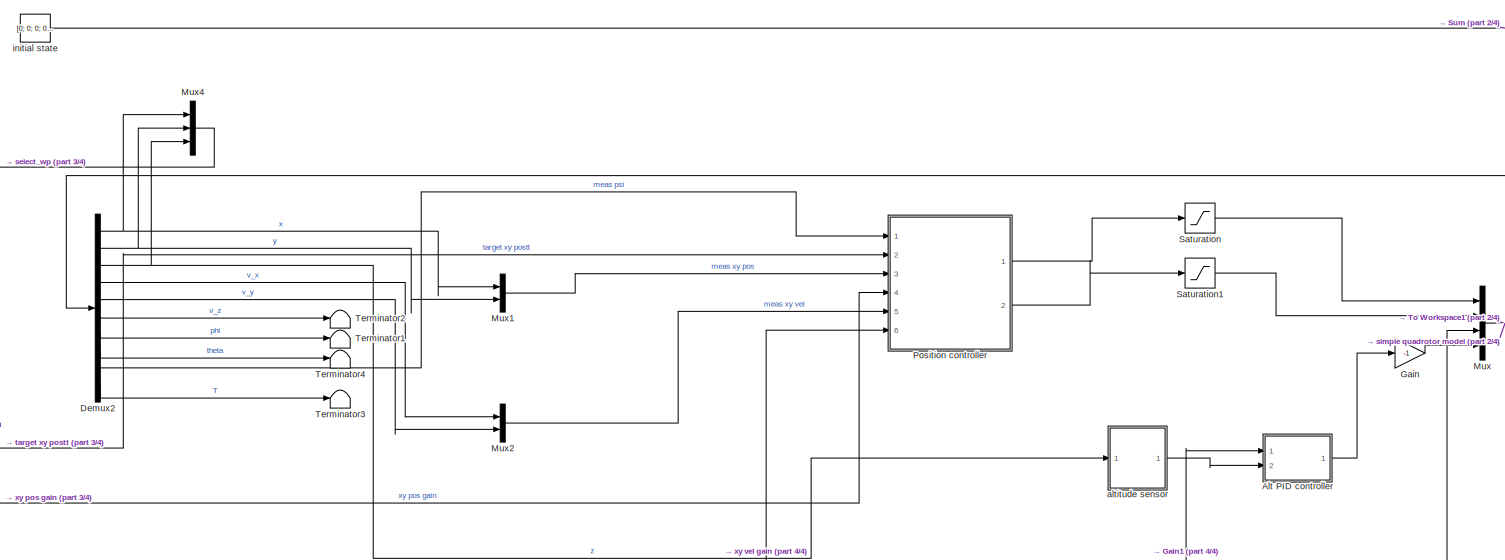
[diagram: root canvas - part 1/4, top center region]
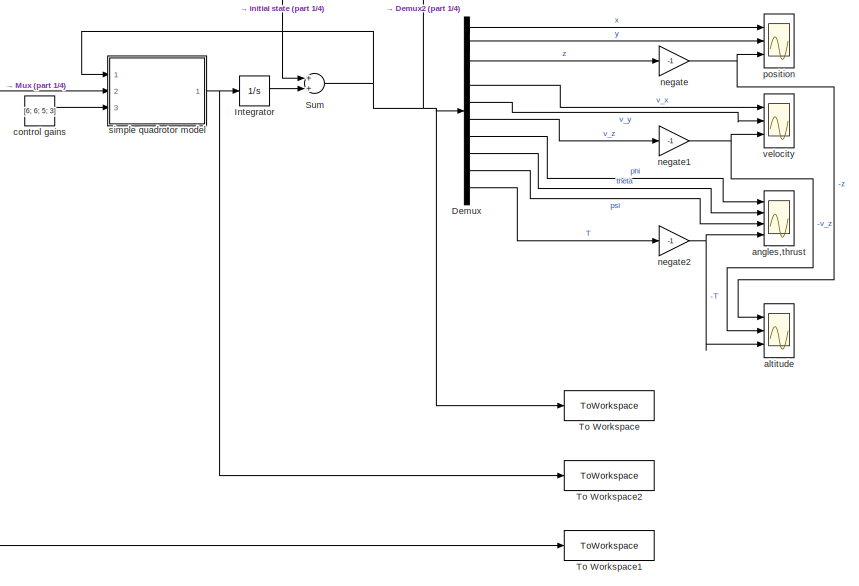
[diagram: root canvas - part 2/4, middle right region]
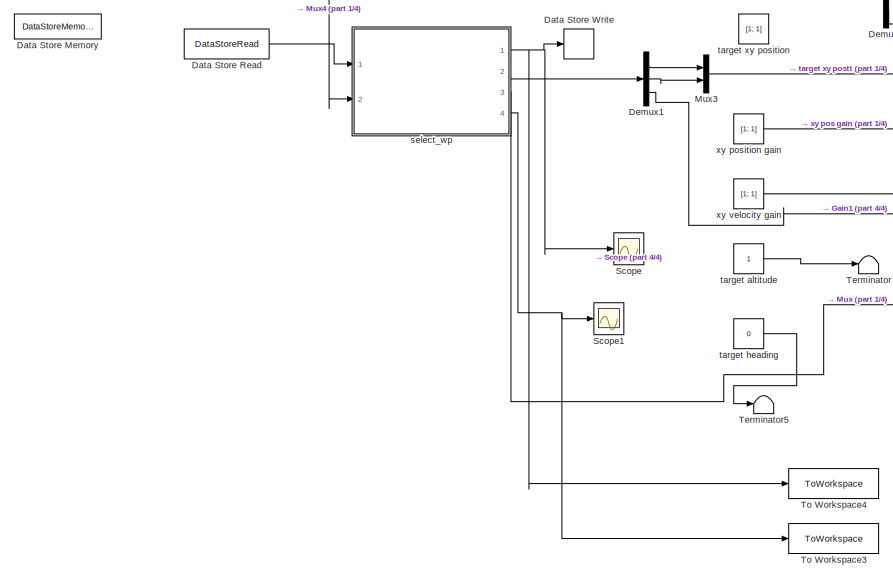
[diagram: root canvas - part 3/4, bottom left region]
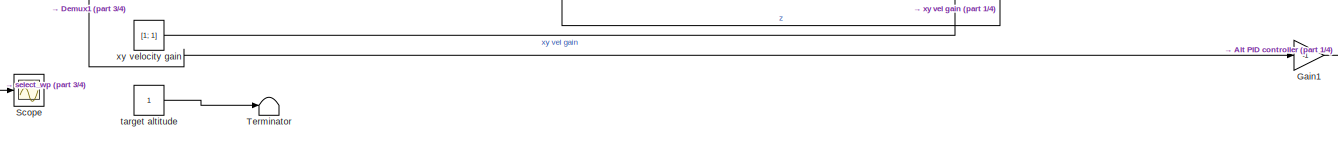
[diagram: root canvas - part 4/4, central region]
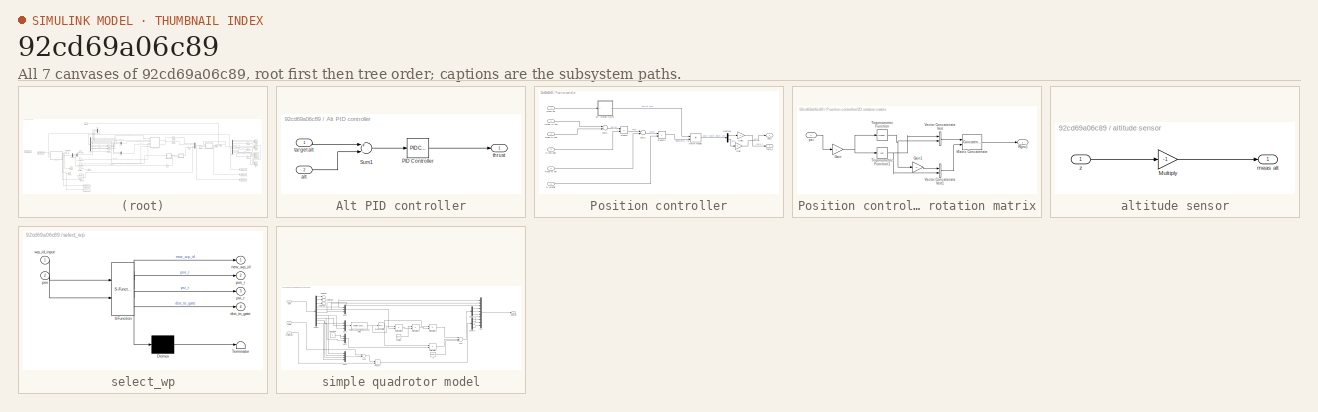
[diagram: thumbnail index - all 7 canvases of the model, root first then tree order]
MODEL slx_92cd69a06c89
KIND model
CONFIG AbsTol = auto
CONFIG EnableMultiTasking = off
CONFIG FixedStep = 0.001
CONFIG MaxStep = auto
CONFIG MinStep = auto
CONFIG RelTol = 1e-3
CONFIG SampleTimeConstraint = Unconstrained
CONFIG Solver = FixedStepAuto
CONFIG SolverName = FixedStepAuto
CONFIG StartTime = 0.0
CONFIG StopTime = 20
WORKSPACE source: mxarray member
WORKSPACE wp_ID: Simulink.Signal (value not decoded)
BLOCK [SubSystem] Alt PID controller
  Ports = [2, 1]
  RequestExecContextInheritance = off
BLOCK [Reference] Alt PID controller/PID Controller  REF=simulink/Continuous/PID Controller
  Ports = [1, 1]
  SourceBlock = simulink/Continuous/PID Controller
  SourceProductBaseCode = SL
  SourceProductName = Simulink
  SourceType = PID 1dof
BLOCK [Sum] Alt PID controller/Sum1
  InputSameDT = off
  Inputs = +-
  OutDataTypeStr = Inherit: Inherit via internal rule
  Ports = [2, 1]
  SaturateOnIntegerOverflow = off
BLOCK [Inport] Alt PID controller/alt
  IconDisplay = Port number
  Port = 2
BLOCK [Inport] Alt PID controller/target alt
  IconDisplay = Port number
BLOCK [Outport] Alt PID controller/thrust
  IconDisplay = Port number
BLOCK [DataStoreMemory] Data Store Memory
  DataStoreName = wp_ID
  InitialValue = 1
  ReadBeforeWriteMsg = warning
  ShowAdditionalParam = off
  StateMustResolveToSignalObject = on
  WriteAfterReadMsg = warning
  WriteAfterWriteMsg = warning
BLOCK [DataStoreRead] Data Store Read
  DataStoreName = wp_ID
  Ports = [0, 1]
BLOCK [DataStoreWrite] Data Store Write
  DataStoreName = wp_ID
  Ports = [1]
BLOCK [Demux] Demux
  DisplayOption = bar
  Outputs = 10
  Ports = [1, 10]
BLOCK [Demux] Demux1
  DisplayOption = bar
  Outputs = 3
  Ports = [1, 3]
BLOCK [Demux] Demux2
  DisplayOption = bar
  Outputs = 10
  Ports = [1, 10]
BLOCK [Gain] Gain
  Gain = -1
  OutDataTypeStr = Inherit: Inherit via internal rule
  ParamDataTypeStr = Inherit: Inherit via internal rule
  SaturateOnIntegerOverflow = off
BLOCK [Gain] Gain1
  Gain = -1
  OutDataTypeStr = Inherit: Inherit via internal rule
  ParamDataTypeStr = Inherit: Inherit via internal rule
  SaturateOnIntegerOverflow = off
BLOCK [Integrator] Integrator
  Ports = [1, 1]
BLOCK [Mux] Mux
  DisplayOption = bar
  Ports = [4, 1]
BLOCK [Mux] Mux1
  DisplayOption = bar
  Inputs = 2
  Ports = [2, 1]
BLOCK [Mux] Mux2
  DisplayOption = bar
  Inputs = 2
  Ports = [2, 1]
BLOCK [Mux] Mux3
  DisplayOption = bar
  Inputs = 2
  Ports = [2, 1]
BLOCK [Mux] Mux4
  DisplayOption = bar
  Inputs = 3
  Ports = [3, 1]
BLOCK [SubSystem] Position controller
  Ports = [6, 2]
  RequestExecContextInheritance = off
BLOCK [SubSystem] Position controller/2D rotation matrix
  Ports = [1, 1]
  RequestExecContextInheritance = off
BLOCK [Gain] Position controller/2D rotation matrix/Gain
  Gain = -1
  OutDataTypeStr = Inherit: Inherit via internal rule
  ParamDataTypeStr = Inherit: Inherit via internal rule
  SaturateOnIntegerOverflow = off
BLOCK [Gain] Position controller/2D rotation matrix/Gain1
  Gain = -1
  OutDataTypeStr = Inherit: Inherit via internal rule
  ParamDataTypeStr = Inherit: Inherit via internal rule
  SaturateOnIntegerOverflow = off
BLOCK [Concatenate] Position controller/2D rotation matrix/Matrix Concatenate
  ConcatenateDimension = 2
  Mode = Multidimensional array
  Ports = [2, 1]
BLOCK [Outport] Position controller/2D rotation matrix/R(psi)
  IconDisplay = Port number
BLOCK [Trigonometry] Position controller/2D rotation matrix/Trigonometric Function
  Ports = [1, 1]
BLOCK [Trigonometry] Position controller/2D rotation matrix/Trigonometric Function1
  Operator = cos
  Ports = [1, 1]
BLOCK [Concatenate] Position controller/2D rotation matrix/Vector Concatenate Vert
  Mode = Multidimensional array
  Ports = [2, 1]
BLOCK [Concatenate] Position controller/2D rotation matrix/Vector Concatenate Vert1
  Mode = Multidimensional array
  Ports = [2, 1]
BLOCK [Inport] Position controller/2D rotation matrix/psi
  IconDisplay = Port number
BLOCK [Demux] Position controller/Demux2
  DisplayOption = bar
  Outputs = 2
  Ports = [1, 2]
BLOCK [Gain] Position controller/Gain
  OutDataTypeStr = Inherit: Inherit via internal rule
  ParamDataTypeStr = Inherit: Inherit via internal rule
  SaturateOnIntegerOverflow = off
BLOCK [Gain] Position controller/Gain1
  Gain = -1
  OutDataTypeStr = Inherit: Inherit via internal rule
  ParamDataTypeStr = Inherit: Inherit via internal rule
  SaturateOnIntegerOverflow = off
BLOCK [Product] Position controller/Matrix Multiply
  InputSameDT = off
  Multiplication = Matrix(*)
  OutDataTypeStr = Inherit: Inherit via internal rule
  Ports = [2, 1]
  RndMeth = Floor
  SaturateOnIntegerOverflow = off
BLOCK [Product] Position controller/Product
  InputSameDT = off
  OutDataTypeStr = Inherit: Inherit via internal rule
  Ports = [2, 1]
  RndMeth = Floor
  SaturateOnIntegerOverflow = off
BLOCK [Product] Position controller/Product1
  InputSameDT = off
  OutDataTypeStr = Inherit: Inherit via internal rule
  Ports = [2, 1]
  RndMeth = Floor
  SaturateOnIntegerOverflow = off
BLOCK [Sum] Position controller/Sum1
  InputSameDT = off
  Inputs = +-
  OutDataTypeStr = Inherit: Inherit via internal rule
  Ports = [2, 1]
  SaturateOnIntegerOverflow = off
BLOCK [Sum] Position controller/Sum2
  InputSameDT = off
  Inputs = +-
  OutDataTypeStr = Inherit: Inherit via internal rule
  Ports = [2, 1]
  SaturateOnIntegerOverflow = off
BLOCK [Inport] Position controller/meas psi
  IconDisplay = Port number
BLOCK [Inport] Position controller/meas xy pos
  IconDisplay = Port number
  Port = 3
BLOCK [Inport] Position controller/meas xy vel
  IconDisplay = Port number
  Port = 5
BLOCK [Outport] Position controller/phi_c
  IconDisplay = Port number
BLOCK [Inport] Position controller/target xy pos
  IconDisplay = Port number
  Port = 2
BLOCK [Outport] Position controller/theta_c
  IconDisplay = Port number
  Port = 2
BLOCK [Inport] Position controller/xy pos gain
  IconDisplay = Port number
  Port = 4
BLOCK [Inport] Position controller/xy vel gain
  IconDisplay = Port number
  Port = 6
BLOCK [Saturate] Saturation
  InputPortMap = u0
  LowerLimit = -pi/4
  Ports = [1, 1]
  UpperLimit = pi/4
BLOCK [Saturate] Saturation1
  InputPortMap = u0
  LowerLimit = -pi/4
  Ports = [1, 1]
  UpperLimit = pi/4
BLOCK [Scope] Scope
  Floating = off
  NumInputPorts = 1
  Ports = [1]
  ScopeSpecificationString = Simulink.scopes.TimeScopeBlockCfg('CurrentConfiguration', extmgr.ConfigurationSet(extmgr.Configuration('Core','General UI',true),extmgr.Configuration('Core','Source UI',true),extmgr.Configuration('Sources','WiredSimulink',true,'DataLoggingVariableName','ScopeData1'),extmgr.Configuration('Visuals','Time Domain',true,'SerializedDisplays',{struct('MinYLimReal','0.9','MaxYLimReal','1.1','YLabelReal','...<+1398ch>
BLOCK [Scope] Scope1
  Floating = off
  NumInputPorts = 1
  Ports = [1]
  ScopeSpecificationString = Simulink.scopes.TimeScopeBlockCfg('CurrentConfiguration', extmgr.ConfigurationSet(extmgr.Configuration('Core','General UI',true),extmgr.Configuration('Core','Source UI',true),extmgr.Configuration('Sources','WiredSimulink',true,'DataLoggingVariableName','ScopeData1'),extmgr.Configuration('Visuals','Time Domain',true,'SerializedDisplays',{struct('MinYLimReal','-19.12935','MaxYLimReal','181.28622','Y...<+1443ch>
BLOCK [Sum] Sum
  InputSameDT = off
  Inputs = 2
  OutDataTypeStr = Inherit: Inherit via internal rule
  Ports = [2, 1]
  SaturateOnIntegerOverflow = off
BLOCK [Terminator] Terminator
BLOCK [Terminator] Terminator1
BLOCK [Terminator] Terminator2
BLOCK [Terminator] Terminator3
BLOCK [Terminator] Terminator4
BLOCK [Terminator] Terminator5
BLOCK [ToWorkspace] To Workspace
  FixptAsFi = on
  MaxDataPoints = inf
  Ports = [1]
  SampleTime = -1
  SaveFormat = Structure With Time
  VariableName = state
BLOCK [ToWorkspace] To Workspace1
  FixptAsFi = on
  MaxDataPoints = inf
  Ports = [1]
  SampleTime = -1
  SaveFormat = Structure With Time
  VariableName = control
BLOCK [ToWorkspace] To Workspace2
  FixptAsFi = on
  MaxDataPoints = inf
  Ports = [1]
  SampleTime = -1
  SaveFormat = Structure With Time
  VariableName = state_deriv
BLOCK [ToWorkspace] To Workspace3
  FixptAsFi = on
  MaxDataPoints = inf
  Ports = [1]
  SampleTime = -1
  SaveFormat = Structure With Time
  VariableName = dist_to_gate
BLOCK [ToWorkspace] To Workspace4
  FixptAsFi = on
  MaxDataPoints = inf
  Ports = [1]
  SampleTime = -1
  SaveFormat = Structure With Time
  VariableName = wp_ID
BLOCK [Scope] altitude
  Floating = off
  NumInputPorts = 3
  Ports = [3]
  ScopeSpecificationString = Simulink.scopes.TimeScopeBlockCfg('CurrentConfiguration', extmgr.ConfigurationSet(extmgr.Configuration('Core','General UI',true),extmgr.Configuration('Core','Source UI',true),extmgr.Configuration('Sources','WiredSimulink',true,'DataLoggingVariableName','ScopeData1'),extmgr.Configuration('Visuals','Time Domain',true,'SerializedDisplays',{struct('MinYLimReal','-8579.89608','MaxYLimReal','986.65512',...<+1532ch>
BLOCK [SubSystem] altitude sensor
  Ports = [1, 1]
  RequestExecContextInheritance = off
BLOCK [Gain] altitude sensor/Multiply
  Gain = -1
  OutDataTypeStr = Inherit: Inherit via internal rule
  ParamDataTypeStr = Inherit: Inherit via internal rule
  SaturateOnIntegerOverflow = off
BLOCK [Outport] altitude sensor/meas alt
  IconDisplay = Port number
BLOCK [Inport] altitude sensor/z
  IconDisplay = Port number
BLOCK [Scope] angles,thrust
  Floating = off
  NumInputPorts = 4
  Ports = [4]
  ScopeSpecificationString = Simulink.scopes.TimeScopeBlockCfg('CurrentConfiguration', extmgr.ConfigurationSet(extmgr.Configuration('Core','General UI',true),extmgr.Configuration('Core','Source UI',true),extmgr.Configuration('Sources','WiredSimulink',true,'DataLoggingVariableName','ScopeData2'),extmgr.Configuration('Visuals','Time Domain',true,'SerializedDisplays',{struct('MinYLimReal','-3.33858','MaxYLimReal','23.58262','YLa...<+1549ch>
BLOCK [Constant] control gains
  Value = [6; 6; 5; 3]
BLOCK [Constant] initial state
  Value = [0; 0; 0; 0; 0; 0; 0; 0; 0; 0]
BLOCK [Gain] negate
  Gain = -1
  OutDataTypeStr = Inherit: Inherit via internal rule
  ParamDataTypeStr = Inherit: Inherit via internal rule
  SaturateOnIntegerOverflow = off
BLOCK [Gain] negate1
  Gain = -1
  OutDataTypeStr = Inherit: Inherit via internal rule
  ParamDataTypeStr = Inherit: Inherit via internal rule
  SaturateOnIntegerOverflow = off
BLOCK [Gain] negate2
  Gain = -1
  OutDataTypeStr = Inherit: Inherit via internal rule
  ParamDataTypeStr = Inherit: Inherit via internal rule
  SaturateOnIntegerOverflow = off
BLOCK [Scope] position
  Floating = off
  NumInputPorts = 3
  Ports = [3]
  ScopeSpecificationString = Simulink.scopes.TimeScopeBlockCfg('CurrentConfiguration', extmgr.ConfigurationSet(extmgr.Configuration('Core','General UI',true),extmgr.Configuration('Core','Source UI',true),extmgr.Configuration('Sources','WiredSimulink',true,'DataLoggingVariableName','ScopeData1'),extmgr.Configuration('Visuals','Time Domain',true,'SerializedDisplays',{struct('MinYLimReal','-0.41582','MaxYLimReal','2.26836','YLab...<+1508ch>
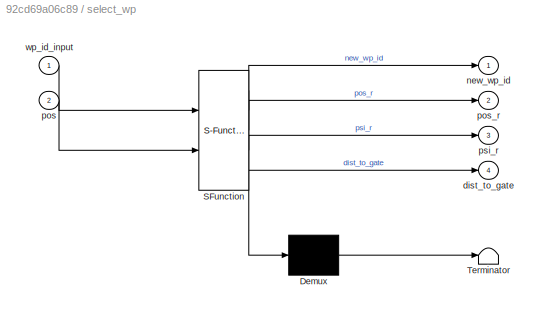
BLOCK [SubSystem] select_wp
  ErrorFcn = Stateflow.Translate.translate
  PermitHierarchicalResolution = ExplicitOnly
  Ports = [2, 4]
  RequestExecContextInheritance = off
  SFBlockType = MATLAB Function
  TreatAsAtomicUnit = on
BLOCK [Demux] select_wp/ Demux 
  Outputs = 1
  Ports = [1, 1]
BLOCK [S-Function] select_wp/ SFunction 
  EnableBusSupport = on
  FunctionName = sf_sfun
  PortCounts = [2 5]
  Ports = [2, 5]
  SFcnIsStateOwnerBlock = off
  SFunctionDeploymentMode = off
  Tag = Stateflow S-Function 2
BLOCK [Terminator] select_wp/ Terminator 
BLOCK [Outport] select_wp/dist_to_gate
  IconDisplay = Port number
  Port = 4
BLOCK [Outport] select_wp/new_wp_id
  IconDisplay = Port number
BLOCK [Inport] select_wp/pos
  IconDisplay = Port number
  Port = 2
BLOCK [Outport] select_wp/pos_r
  IconDisplay = Port number
  Port = 2
BLOCK [Outport] select_wp/psi_r
  IconDisplay = Port number
  Port = 3
BLOCK [Inport] select_wp/wp_id_input
  IconDisplay = Port number
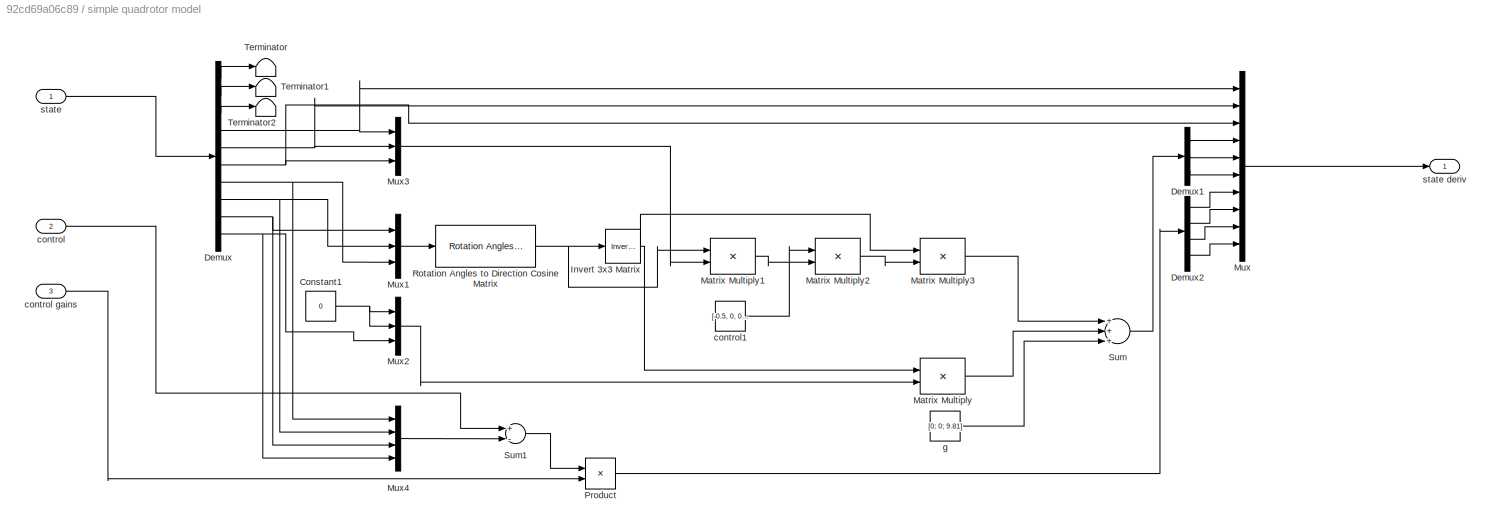
BLOCK [SubSystem] simple quadrotor model
  Ports = [3, 1]
  RequestExecContextInheritance = off
BLOCK [Constant] simple quadrotor model/Constant1
  Value = 0
BLOCK [Demux] simple quadrotor model/Demux
  DisplayOption = bar
  Outputs = 10
  Ports = [1, 10]
BLOCK [Demux] simple quadrotor model/Demux1
  DisplayOption = bar
  Outputs = 3
  Ports = [1, 3]
BLOCK [Demux] simple quadrotor model/Demux2
  DisplayOption = bar
  Ports = [1, 4]
BLOCK [Reference] simple quadrotor model/Invert 3x3 Matrix  REF=aerolibutil/Invert 
3x3 Matrix
  Ports = [1, 1]
  SourceBlock = aerolibutil/Invert \n3x3 Matrix
  SourceProductBaseCode = AE
  SourceProductName = Aerospace Blockset
  SourceType = Invert 3x3 Matrix
BLOCK [Product] simple quadrotor model/Matrix Multiply
  InputSameDT = off
  Multiplication = Matrix(*)
  OutDataTypeStr = Inherit: Inherit via internal rule
  Ports = [2, 1]
  RndMeth = Floor
  SaturateOnIntegerOverflow = off
BLOCK [Product] simple quadrotor model/Matrix Multiply1
  InputSameDT = off
  Multiplication = Matrix(*)
  OutDataTypeStr = Inherit: Inherit via internal rule
  Ports = [2, 1]
  RndMeth = Floor
  SaturateOnIntegerOverflow = off
BLOCK [Product] simple quadrotor model/Matrix Multiply2
  InputSameDT = off
  Multiplication = Matrix(*)
  OutDataTypeStr = Inherit: Inherit via internal rule
  Ports = [2, 1]
  RndMeth = Floor
  SaturateOnIntegerOverflow = off
BLOCK [Product] simple quadrotor model/Matrix Multiply3
  InputSameDT = off
  Multiplication = Matrix(*)
  OutDataTypeStr = Inherit: Inherit via internal rule
  Ports = [2, 1]
  RndMeth = Floor
  SaturateOnIntegerOverflow = off
BLOCK [Mux] simple quadrotor model/Mux
  DisplayOption = bar
  Inputs = 10
  Ports = [10, 1]
BLOCK [Mux] simple quadrotor model/Mux1
  DisplayOption = bar
  Inputs = 3
  Ports = [3, 1]
BLOCK [Mux] simple quadrotor model/Mux2
  DisplayOption = bar
  Inputs = 3
  Ports = [3, 1]
BLOCK [Mux] simple quadrotor model/Mux3
  DisplayOption = bar
  Inputs = 3
  Ports = [3, 1]
BLOCK [Mux] simple quadrotor model/Mux4
  DisplayOption = bar
  Ports = [4, 1]
BLOCK [Product] simple quadrotor model/Product
  InputSameDT = off
  OutDataTypeStr = Inherit: Inherit via internal rule
  Ports = [2, 1]
  RndMeth = Floor
  SaturateOnIntegerOverflow = off
BLOCK [Reference] simple quadrotor model/Rotation Angles to Direction Cosine Matrix  REF=sharedtransform/Rotation Angles to
Direction Cosine Matrix
  AttributesFormatString = Rotation Order: %<rotationOrder>
  Ports = [1, 1]
  SourceBlock = sharedtransform/Rotation Angles to\nDirection Cosine Matrix
  SourceProductBaseCode = AE
  SourceProductName = Aerospace Blockset
  SourceType = Ang2DCM
BLOCK [Sum] simple quadrotor model/Sum
  InputSameDT = off
  Inputs = +++
  OutDataTypeStr = Inherit: Inherit via internal rule
  Ports = [3, 1]
  SaturateOnIntegerOverflow = off
BLOCK [Sum] simple quadrotor model/Sum1
  InputSameDT = off
  Inputs = +-
  OutDataTypeStr = Inherit: Inherit via internal rule
  Ports = [2, 1]
  SaturateOnIntegerOverflow = off
BLOCK [Terminator] simple quadrotor model/Terminator
BLOCK [Terminator] simple quadrotor model/Terminator1
BLOCK [Terminator] simple quadrotor model/Terminator2
BLOCK [Inport] simple quadrotor model/control
  IconDisplay = Port number
  Port = 2
BLOCK [Inport] simple quadrotor model/control gains
  IconDisplay = Port number
  Port = 3
BLOCK [Constant] simple quadrotor model/control1
  Value = [-0.5, 0, 0; 0, -0.5, 0; 0, 0, 0]
BLOCK [Constant] simple quadrotor model/g
  Value = [0; 0; 9.81]
BLOCK [Inport] simple quadrotor model/state
  IconDisplay = Port number
BLOCK [Outport] simple quadrotor model/state deriv
  IconDisplay = Port number
BLOCK [Constant] target altitude
BLOCK [Constant] target heading
  Value = 0
BLOCK [Constant] target xy position
  Commented = on
  Value = [1; 1]
BLOCK [Scope] velocity
  Floating = off
  NumInputPorts = 3
  Ports = [3]
  ScopeSpecificationString = Simulink.scopes.TimeScopeBlockCfg('CurrentConfiguration', extmgr.ConfigurationSet(extmgr.Configuration('Core','General UI',true),extmgr.Configuration('Core','Source UI',true),extmgr.Configuration('Sources','WiredSimulink',true),extmgr.Configuration('Visuals','Time Domain',true,'SerializedDisplays',{struct('MinYLimReal','-1.70019','MaxYLimReal','3.36695','YLabelReal','','MinYLimMag','0.00000','MaxY...<+1500ch>
BLOCK [Constant] xy position gain
  Value = [1; 1]
BLOCK [Constant] xy velocity gain
  Value = [1; 1]
LINE Alt PID controller/PID Controller:1 -> Alt PID controller/thrust:1
LINE Alt PID controller/Sum1:1 -> Alt PID controller/PID Controller:1
LINE Alt PID controller/alt:1 -> Alt PID controller/Sum1:2
LINE Alt PID controller/target alt:1 -> Alt PID controller/Sum1:1
LINE Alt PID controller:1 -> Gain:1
LINE Data Store Read:1 -> select_wp:1
LINE Demux1:1 -> Mux3:1
LINE Demux1:2 -> Mux3:2
LINE Demux1:3 -> Gain1:1
NET Demux2:1 -> Mux1:1, Mux4:1
LINE Demux2:10 -> Terminator3:1
NET Demux2:2 -> Mux1:2, Mux4:2
NET Demux2:3 -> Mux4:3, altitude sensor:1
LINE Demux2:4 -> Mux2:1
LINE Demux2:5 -> Mux2:2
LINE Demux2:6 -> Terminator2:1
LINE Demux2:7 -> Terminator1:1
LINE Demux2:8 -> Terminator4:1
LINE Demux2:9 -> Position controller:1
LINE Demux:1 -> position:1
LINE Demux:10 -> negate2:1
LINE Demux:2 -> position:2
LINE Demux:3 -> negate:1
LINE Demux:4 -> velocity:1
LINE Demux:5 -> velocity:2
LINE Demux:6 -> negate1:1
LINE Demux:7 -> angles,thrust:1
LINE Demux:8 -> angles,thrust:2
LINE Demux:9 -> angles,thrust:3
LINE Gain1:1 -> Alt PID controller:1
LINE Gain:1 -> Mux:4
LINE Integrator:1 -> Sum:2
LINE Mux1:1 -> Position controller:3
LINE Mux2:1 -> Position controller:5
LINE Mux3:1 -> Position controller:2
LINE Mux4:1 -> select_wp:2
NET Mux:1 -> To Workspace1:1, simple quadrotor model:2
LINE Position controller/2D rotation matrix/Gain1:1 -> Position controller/2D rotation matrix/Vector Concatenate Vert1:1
NET Position controller/2D rotation matrix/Gain:1 -> Position controller/2D rotation matrix/Trigonometric Function1:1, Position controller/2D rotation matrix/Trigonometric Function:1
LINE Position controller/2D rotation matrix/Matrix Concatenate:1 -> Position controller/2D rotation matrix/R(psi):1
NET Position controller/2D rotation matrix/Trigonometric Function1:1 -> Position controller/2D rotation matrix/Vector Concatenate Vert1:2, Position controller/2D rotation matrix/Vector Concatenate Vert:1
NET Position controller/2D rotation matrix/Trigonometric Function:1 -> Position controller/2D rotation matrix/Gain1:1, Position controller/2D rotation matrix/Vector Concatenate Vert:2
LINE Position controller/2D rotation matrix/Vector Concatenate Vert1:1 -> Position controller/2D rotation matrix/Matrix Concatenate:2
LINE Position controller/2D rotation matrix/Vector Concatenate Vert:1 -> Position controller/2D rotation matrix/Matrix Concatenate:1
LINE Position controller/2D rotation matrix/psi:1 -> Position controller/2D rotation matrix/Gain:1
LINE Position controller/2D rotation matrix:1 -> Position controller/Matrix Multiply:1
LINE Position controller/Demux2:1 -> Position controller/Gain1:1
LINE Position controller/Demux2:2 -> Position controller/Gain:1
LINE Position controller/Gain1:1 -> Position controller/theta_c:1
LINE Position controller/Gain:1 -> Position controller/phi_c:1
LINE Position controller/Matrix Multiply:1 -> Position controller/Demux2:1
LINE Position controller/Product1:1 -> Position controller/Matrix Multiply:2
LINE Position controller/Product:1 -> Position controller/Sum2:1
LINE Position controller/Sum1:1 -> Position controller/Product:1
LINE Position controller/Sum2:1 -> Position controller/Product1:1
LINE Position controller/meas psi:1 -> Position controller/2D rotation matrix:1
LINE Position controller/meas xy pos:1 -> Position controller/Sum1:2
LINE Position controller/meas xy vel:1 -> Position controller/Sum2:2
LINE Position controller/target xy pos:1 -> Position controller/Sum1:1
LINE Position controller/xy pos gain:1 -> Position controller/Product:2
LINE Position controller/xy vel gain:1 -> Position controller/Product1:2
LINE Position controller:1 -> Saturation:1
LINE Position controller:2 -> Saturation1:1
LINE Saturation1:1 -> Mux:2
LINE Saturation:1 -> Mux:1
NET Sum:1 -> Demux2:1, Demux:1, To Workspace:1, simple quadrotor model:1
LINE altitude sensor/Multiply:1 -> altitude sensor/meas alt:1
LINE altitude sensor/z:1 -> altitude sensor/Multiply:1
LINE altitude sensor:1 -> Alt PID controller:2
LINE control gains:1 -> simple quadrotor model:3
LINE initial state:1 -> Sum:1
NET negate1:1 -> altitude:2, velocity:3
NET negate2:1 -> altitude:3, angles,thrust:4
NET negate:1 -> altitude:1, position:3
NET select_wp:1 -> Data Store Write:1, Scope:1, To Workspace4:1
LINE select_wp:2 -> Demux1:1
LINE select_wp:3 -> Mux:3
NET select_wp:4 -> Scope1:1, To Workspace3:1
NET simple quadrotor model/Constant1:1 -> simple quadrotor model/Mux2:1, simple quadrotor model/Mux2:2
LINE simple quadrotor model/Demux1:1 -> simple quadrotor model/Mux:4
LINE simple quadrotor model/Demux1:2 -> simple quadrotor model/Mux:5
LINE simple quadrotor model/Demux1:3 -> simple quadrotor model/Mux:6
LINE simple quadrotor model/Demux2:1 -> simple quadrotor model/Mux:7
LINE simple quadrotor model/Demux2:2 -> simple quadrotor model/Mux:8
LINE simple quadrotor model/Demux2:3 -> simple quadrotor model/Mux:9
LINE simple quadrotor model/Demux2:4 -> simple quadrotor model/Mux:10
LINE simple quadrotor model/Demux:1 -> simple quadrotor model/Terminator:1
NET simple quadrotor model/Demux:10 -> simple quadrotor model/Mux2:3, simple quadrotor model/Mux4:4
LINE simple quadrotor model/Demux:2 -> simple quadrotor model/Terminator1:1
LINE simple quadrotor model/Demux:3 -> simple quadrotor model/Terminator2:1
NET simple quadrotor model/Demux:4 -> simple quadrotor model/Mux3:1, simple quadrotor model/Mux:1
NET simple quadrotor model/Demux:5 -> simple quadrotor model/Mux3:2, simple quadrotor model/Mux:2
NET simple quadrotor model/Demux:6 -> simple quadrotor model/Mux3:3, simple quadrotor model/Mux:3
NET simple quadrotor model/Demux:7 -> simple quadrotor model/Mux1:3, simple quadrotor model/Mux4:1
NET simple quadrotor model/Demux:8 -> simple quadrotor model/Mux1:2, simple quadrotor model/Mux4:2
NET simple quadrotor model/Demux:9 -> simple quadrotor model/Mux1:1, simple quadrotor model/Mux4:3
NET simple quadrotor model/Invert 3x3 Matrix:1 -> simple quadrotor model/Matrix Multiply3:1, simple quadrotor model/Matrix Multiply:1
LINE simple quadrotor model/Matrix Multiply1:1 -> simple quadrotor model/Matrix Multiply2:2
LINE simple quadrotor model/Matrix Multiply2:1 -> simple quadrotor model/Matrix Multiply3:2
LINE simple quadrotor model/Matrix Multiply3:1 -> simple quadrotor model/Sum:1
LINE simple quadrotor model/Matrix Multiply:1 -> simple quadrotor model/Sum:2
LINE simple quadrotor model/Mux1:1 -> simple quadrotor model/Rotation Angles to Direction Cosine Matrix:1
LINE simple quadrotor model/Mux2:1 -> simple quadrotor model/Matrix Multiply:2
LINE simple quadrotor model/Mux3:1 -> simple quadrotor model/Matrix Multiply1:2
LINE simple quadrotor model/Mux4:1 -> simple quadrotor model/Sum1:2
LINE simple quadrotor model/Mux:1 -> simple quadrotor model/state deriv:1
LINE simple quadrotor model/Product:1 -> simple quadrotor model/Demux2:1
NET simple quadrotor model/Rotation Angles to Direction Cosine Matrix:1 -> simple quadrotor model/Invert 3x3 Matrix:1, simple quadrotor model/Matrix Multiply1:1
LINE simple quadrotor model/Sum1:1 -> simple quadrotor model/Product:1
LINE simple quadrotor model/Sum:1 -> simple quadrotor model/Demux1:1
LINE simple quadrotor model/control gains:1 -> simple quadrotor model/Product:2
LINE simple quadrotor model/control1:1 -> simple quadrotor model/Matrix Multiply2:1
LINE simple quadrotor model/control:1 -> simple quadrotor model/Sum1:1
LINE simple quadrotor model/g:1 -> simple quadrotor model/Sum:3
LINE simple quadrotor model/state:1 -> simple quadrotor model/Demux:1
NET simple quadrotor model:1 -> Integrator:1, To Workspace2:1
LINE target altitude:1 -> Terminator:1
LINE target heading:1 -> Terminator5:1
LINE xy position gain:1 -> Position controller:4
LINE xy velocity gain:1 -> Position controller:6
note: NET lines group one-source signal fan-out (src -> all destinations, sorted); 1:1 wires keep LINE
CHART select_wp states=1 transitions=1
  STATE_LABEL 'eML_blk_kernel()'
  STATE_LABEL 'SCRIPT:\n\n% function pos_r  = select_wp(pos)\nfunction [new_wp_id, pos_r, psi_r, dist_to_gate] = select_wp(wp_id_input, pos)\n% Function to determine the position and heading targets, as well as\n% whether to change the waypoint, given the current waypoint, position and\n% heading targets.\n\ns.pos = zeros(3, 1);\ns.psi = 0;\nwps = repmat(s,4,1);\n\nwps(1).pos = [2; 0; -1];\nwps(2).pos = [2; 2; -1];\nwps(3).po...<+933ch>'
